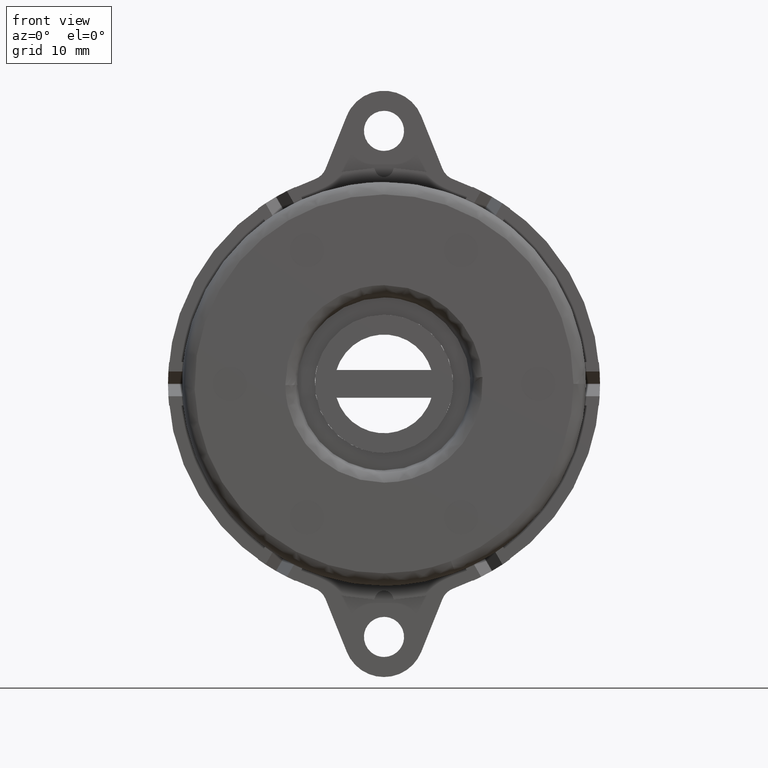
[diagram: clean part render]
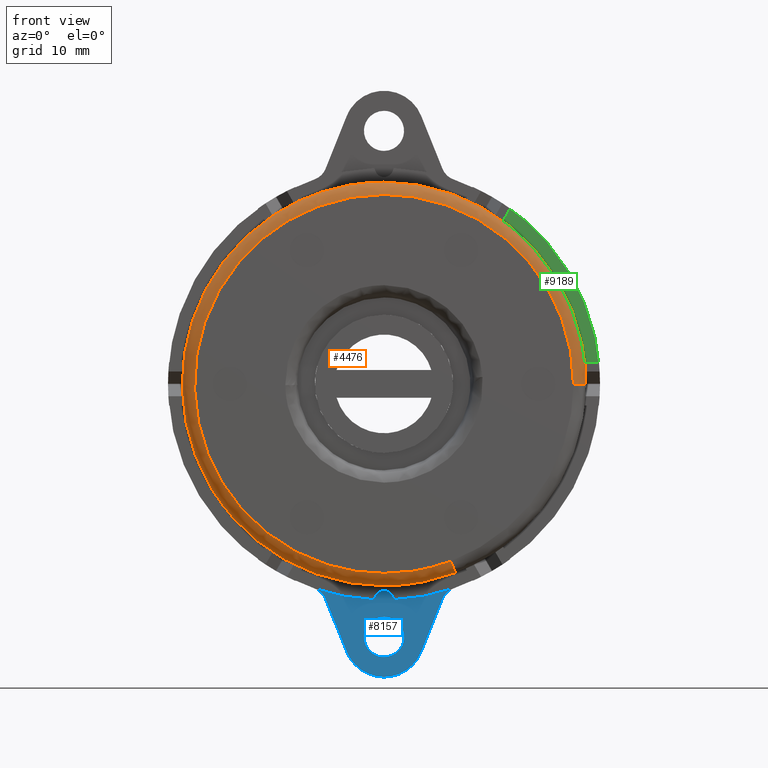
[diagram: same view with three faces highlighted in distinct colors, each labeled with its STEP entity id]
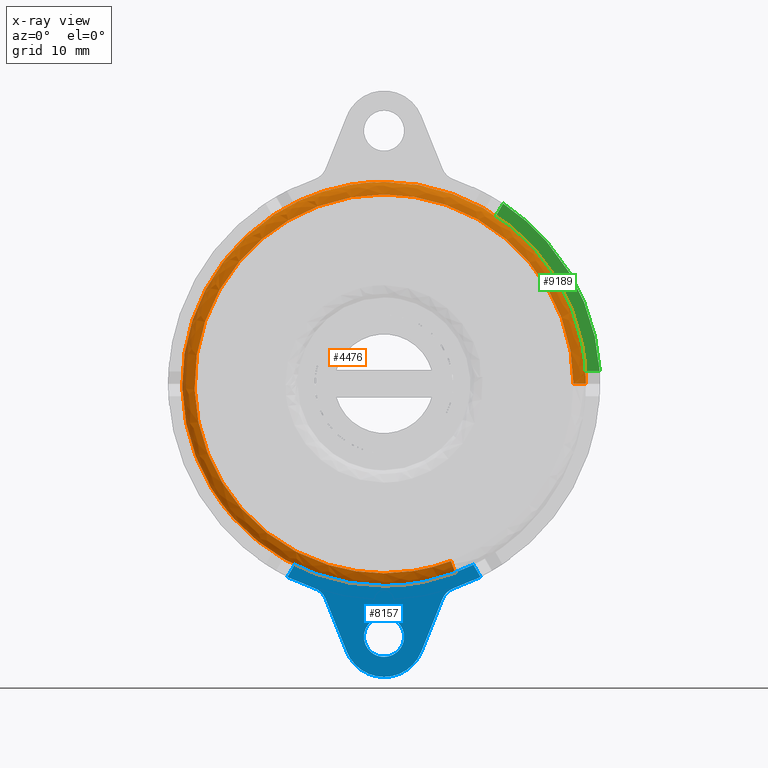
[diagram: x-ray of the same camera — body ghosted, the three highlighted faces saturated]
A machine part, front view with three faces highlighted in distinct colors.
The next image is the same camera in x-ray (body ghosted, the three faces saturated) — at least one of them is partly hidden behind the body in this view.
Their STEP definitions:

[orange] entity #4476 — the highlighted face is a freeform B-spline surface patch.
#2391=CARTESIAN_POINT('',(-27.975708191630559,-9.299999999999999,-16.930733923156868));
#2392=VERTEX_POINT('',#2391);
#2393=CARTESIAN_POINT('',(-9.911116520391543,-9.300000000002612,31.161831931372731));
#2394=VERTEX_POINT('',#2393);
#2395=CARTESIAN_POINT('',(-27.975708191630556,-9.299999999999999,-16.930733923156861));
#2396=CARTESIAN_POINT('',(-32.700000000000003,-9.299999999999999,-9.124491760922808));
#2397=CARTESIAN_POINT('',(-32.700000000000003,-9.299999999999999,-9.985231E-016));
#2398=CARTESIAN_POINT('',(-32.700000000000003,-9.299999999999999,23.913757426850960));
#2399=CARTESIAN_POINT('',(-9.911116520391543,-9.300000000002610,31.161831931372728));
#2407=(BOUNDED_CURVE()B_SPLINE_CURVE(2,(#2395,#2396,#2397,#2398,#2399),.UNSPECIFIED.,.F.,.U.)B_SPLINE_CURVE_WITH_KNOTS((3,2,3),(0.661566878939091,0.750000000000000,0.948444082053366),.UNSPECIFIED.)CURVE()GEOMETRIC_REPRESENTATION_ITEM()RATIONAL_B_SPLINE_CURVE((0.866085814693111,0.896394154091002,1.0,0.767508296211635,0.904109414369711))REPRESENTATION_ITEM(''));
#2408=EDGE_CURVE('',#2392,#2394,#2407,.T.);
#3012=CARTESIAN_POINT('',(0.0,-9.299999999999999,32.700000000000003));
#3013=VERTEX_POINT('',#3012);
#3014=CARTESIAN_POINT('',(-9.911116520391543,-9.300000000002610,31.161831931372728));
#3015=CARTESIAN_POINT('',(-5.074917214480928,-9.299999999999999,32.700000000000010));
#3016=CARTESIAN_POINT('',(0.0,-9.299999999999999,32.700000000000003));
#3024=(BOUNDED_CURVE()B_SPLINE_CURVE(2,(#3014,#3015,#3016),.UNSPECIFIED.,.F.,.U.)B_SPLINE_CURVE_WITH_KNOTS((3,3),(0.948444082053366,1.0),.UNSPECIFIED.)CURVE()GEOMETRIC_REPRESENTATION_ITEM()RATIONAL_B_SPLINE_CURVE((0.904109414369711,0.939598484974912,1.0))REPRESENTATION_ITEM(''));
#3025=EDGE_CURVE('',#2394,#3013,#3024,.T.);
#3027=CARTESIAN_POINT('',(32.700000000000003,-9.300000000022527,0.0));
#3028=VERTEX_POINT('',#3027);
#3029=CARTESIAN_POINT('',(0.0,-9.299999999999999,32.700000000000003));
#3030=CARTESIAN_POINT('',(32.700000000000017,-9.300000000000001,32.700000000000003));
#3031=CARTESIAN_POINT('',(32.700000000000003,-9.300000000022527,0.0));
#3039=(BOUNDED_CURVE()B_SPLINE_CURVE(2,(#3029,#3030,#3031),.UNSPECIFIED.,.F.,.U.)B_SPLINE_CURVE_WITH_KNOTS((3,3),(0.0,0.250000000000000),.UNSPECIFIED.)CURVE()GEOMETRIC_REPRESENTATION_ITEM()RATIONAL_B_SPLINE_CURVE((1.0,0.707106781186547,1.0))REPRESENTATION_ITEM(''));
#3040=EDGE_CURVE('',#3013,#3028,#3039,.T.);
#3042=CARTESIAN_POINT('',(11.552974309786659,-9.300000000025948,-30.591155332831249));
#3043=VERTEX_POINT('',#3042);
#3057=CARTESIAN_POINT('',(0.0,-9.299999999999999,-32.700000000000003));
#3058=VERTEX_POINT('',#3057);
#3059=CARTESIAN_POINT('',(11.552974309786656,-9.300000000025948,-30.591155332831242));
#3060=CARTESIAN_POINT('',(5.968958189235386,-9.299999999999999,-32.700000000000003));
#3061=CARTESIAN_POINT('',(0.0,-9.299999999999999,-32.700000000000003));
#3069=(BOUNDED_CURVE()B_SPLINE_CURVE(2,(#3059,#3060,#3061),.UNSPECIFIED.,.F.,.U.)B_SPLINE_CURVE_WITH_KNOTS((3,3),(0.439999999999986,0.500000000000000),.UNSPECIFIED.)CURVE()GEOMETRIC_REPRESENTATION_ITEM()RATIONAL_B_SPLINE_CURVE((0.893152553776835,0.929705627484755,1.0))REPRESENTATION_ITEM(''));
#3070=EDGE_CURVE('',#3043,#3058,#3069,.T.);
#3072=CARTESIAN_POINT('',(0.0,-9.299999999999999,-32.700000000000003));
#3073=CARTESIAN_POINT('',(-18.432241181185169,-9.299999999999999,-32.700000000000010));
#3074=CARTESIAN_POINT('',(-27.975708191630559,-9.299999999999999,-16.930733923156868));
#3082=(BOUNDED_CURVE()B_SPLINE_CURVE(2,(#3072,#3073,#3074),.UNSPECIFIED.,.F.,.U.)B_SPLINE_CURVE_WITH_KNOTS((3,3),(0.500000000000000,0.661566878939090),.UNSPECIFIED.)CURVE()GEOMETRIC_REPRESENTATION_ITEM()RATIONAL_B_SPLINE_CURVE((1.0,0.810712627095546,0.866085814693111))REPRESENTATION_ITEM(''));
#3083=EDGE_CURVE('',#3058,#2392,#3082,.T.);
#4359=CARTESIAN_POINT('',(10.797366990014213,-11.295184701486932,-28.590380444051565));
#4360=CARTESIAN_POINT('',(5.578566210661520,-11.295184701486933,-30.561298857421864));
#4361=CARTESIAN_POINT('',(3.742556E-015,-11.295184701486932,-30.561298857421860));
#4362=CARTESIAN_POINT('',(-30.561298857421857,-11.295184701486937,-30.561298857421857));
#4363=CARTESIAN_POINT('',(-30.561298857421860,-11.295184701486932,-6.612357E-015));
#4364=CARTESIAN_POINT('',(-30.561298857421857,-11.295184701486937,30.561298857421857));
#4365=CARTESIAN_POINT('',(-7.485112E-015,-11.295184701486932,30.561298857421860));
#4366=CARTESIAN_POINT('',(30.561298857421857,-11.295184701486937,30.561298857421857));
#4367=CARTESIAN_POINT('',(30.561298857421860,-11.295184701486932,8.357867E-015));
#4368=CARTESIAN_POINT('',(11.607905112446989,-11.454671347022614,-30.736606769987500));
#4369=CARTESIAN_POINT('',(5.997338730521062,-11.454671347022614,-32.855478338207391));
#4370=CARTESIAN_POINT('',(4.023503E-015,-11.454671347022614,-32.855478338207384));
#4371=CARTESIAN_POINT('',(-32.855478338207369,-11.454671347022616,-32.855478338207398));
#4372=CARTESIAN_POINT('',(-32.855478338207384,-11.454671347022614,-7.033777E-015));
#4373=CARTESIAN_POINT('',(-32.855478338207398,-11.454671347022616,32.855478338207369));
#4374=CARTESIAN_POINT('',(-8.047006E-015,-11.454671347022614,32.855478338207384));
#4375=CARTESIAN_POINT('',(32.855478338207369,-11.454671347022616,32.855478338207398));
#4376=CARTESIAN_POINT('',(32.855478338207384,-11.454671347022614,9.060234E-015));
#4377=CARTESIAN_POINT('',(11.551254656079776,-9.160551748587878,-30.586601856626160));
#4378=CARTESIAN_POINT('',(5.968069713176283,-9.160551748587880,-32.695132623455926));
#4379=CARTESIAN_POINT('',(4.003867E-015,-9.160551748587878,-32.695132623455919));
#4380=CARTESIAN_POINT('',(-32.695132623455912,-9.160551748587878,-32.695132623455926));
#4381=CARTESIAN_POINT('',(-32.695132623455919,-9.160551748587878,-7.004323E-015));
#4382=CARTESIAN_POINT('',(-32.695132623455926,-9.160551748587878,32.695132623455912));
#4383=CARTESIAN_POINT('',(-8.007733E-015,-9.160551748587878,32.695132623455919));
#4384=CARTESIAN_POINT('',(32.695132623455912,-9.160551748587878,32.695132623455926));
#4385=CARTESIAN_POINT('',(32.695132623455919,-9.160551748587878,9.011144E-015));
#4393=(BOUNDED_SURFACE()B_SPLINE_SURFACE(2,2,((#4359,#4368,#4377),(#4360,#4369,#4378),(#4361,#4370,#4379),(#4362,#4371,#4380),(#4363,#4372,#4381),(#4364,#4373,#4382),(#4365,#4374,#4383),(#4366,#4375,#4384),(#4367,#4376,#4385)),.UNSPECIFIED.,.F.,.F.,.U.)B_SPLINE_SURFACE_WITH_KNOTS((3,2,2,2,3),(3,3),(0.0,13.001056661973580,67.172126086863457,121.343195511753290,175.514264936643200),(0.0,3.644740501120273),.UNSPECIFIED.)GEOMETRIC_REPRESENTATION_ITEM()RATIONAL_B_SPLINE_SURFACE(((0.818097925961966,0.535367204398513,0.813566335131316),(0.851579321342329,0.557277590032444,0.846862271070348),(0.915966620150718,0.599412947020773,0.910892917106947),(0.647686208449095,0.423848959569402,0.644098558621118),(0.915966620150718,0.599412947020773,0.910892917106947),(0.647686208449095,0.423848959569402,0.644098558621118),(0.915966620150718,0.599412947020773,0.910892917106947),(0.647686208449095,0.423848959569402,0.644098558621118),(0.915966620150718,0.599412947020773,0.910892917106947)))REPRESENTATION_ITEM('')SURFACE());
#4394=CARTESIAN_POINT('',(0.0,-11.300000000000001,-30.699999999999999));
#4395=VERTEX_POINT('',#4394);
#4396=CARTESIAN_POINT('',(10.846370380472649,-11.300000000000001,-28.720136668097190));
#4397=VERTEX_POINT('',#4396);
#4398=CARTESIAN_POINT('',(0.0,-11.300000000000001,-30.699999999999999));
#4399=CARTESIAN_POINT('',(5.603884294070642,-11.299999999999994,-30.700000000000003));
#4400=CARTESIAN_POINT('',(10.846370380472653,-11.299999999999997,-28.720136668097194));
#4408=(BOUNDED_CURVE()B_SPLINE_CURVE(2,(#4398,#4399,#4400),.UNSPECIFIED.,.F.,.U.)B_SPLINE_CURVE_WITH_KNOTS((3,3),(0.500000000000000,0.560000000002018),.UNSPECIFIED.)CURVE()GEOMETRIC_REPRESENTATION_ITEM()RATIONAL_B_SPLINE_CURVE((1.0,0.929705627482407,0.893152553774393))REPRESENTATION_ITEM(''));
#4409=EDGE_CURVE('',#4395,#4397,#4408,.T.);
#4410=ORIENTED_EDGE('',*,*,#4409,.F.);
#4411=CARTESIAN_POINT('',(0.0,-11.300000000000001,30.699999999999999));
#4412=VERTEX_POINT('',#4411);
#4413=CARTESIAN_POINT('',(0.0,-11.300000000000001,30.699999999999999));
#4414=CARTESIAN_POINT('',(-30.699999999999999,-11.299999999999999,30.699999999999999));
#4415=CARTESIAN_POINT('',(-30.699999999999999,-11.300000000000001,-9.985231E-016));
#4416=CARTESIAN_POINT('',(-30.699999999999999,-11.299999999999999,-30.699999999999999));
#4417=CARTESIAN_POINT('',(0.0,-11.300000000000001,-30.699999999999999));
#4425=(BOUNDED_CURVE()B_SPLINE_CURVE(2,(#4413,#4414,#4415,#4416,#4417),.UNSPECIFIED.,.F.,.U.)B_SPLINE_CURVE_WITH_KNOTS((3,2,3),(0.0,0.250000000000000,0.500000000000000),.UNSPECIFIED.)CURVE()GEOMETRIC_REPRESENTATION_ITEM()RATIONAL_B_SPLINE_CURVE((1.0,0.707106781186548,1.0,0.707106781186548,1.0))REPRESENTATION_ITEM(''));
#4426=EDGE_CURVE('',#4412,#4395,#4425,.T.);
#4427=ORIENTED_EDGE('',*,*,#4426,.F.);
#4428=CARTESIAN_POINT('',(30.700000000572651,-11.300000000000001,0.0));
#4429=VERTEX_POINT('',#4428);
#4430=CARTESIAN_POINT('',(30.700000000572651,-11.300000000000001,0.0));
#4431=CARTESIAN_POINT('',(30.699999999999999,-11.299999999999999,30.699999999999999));
#4432=CARTESIAN_POINT('',(0.0,-11.300000000000001,30.699999999999999));
#4440=(BOUNDED_CURVE()B_SPLINE_CURVE(2,(#4430,#4431,#4432),.UNSPECIFIED.,.F.,.U.)B_SPLINE_CURVE_WITH_KNOTS((3,3),(0.750000000000000,1.0),.UNSPECIFIED.)CURVE()GEOMETRIC_REPRESENTATION_ITEM()RATIONAL_B_SPLINE_CURVE((1.0,0.707106781186548,1.0))REPRESENTATION_ITEM(''));
#4441=EDGE_CURVE('',#4429,#4412,#4440,.T.);
#4442=ORIENTED_EDGE('',*,*,#4441,.F.);
#4443=CARTESIAN_POINT('',(30.700000000572654,-11.300000000000001,0.0));
#4444=CARTESIAN_POINT('',(32.699999999954940,-11.299999998854696,0.0));
#4445=CARTESIAN_POINT('',(32.700000000000010,-9.300000000022527,0.0));
#4453=(BOUNDED_CURVE()B_SPLINE_CURVE(2,(#4443,#4444,#4445),.UNSPECIFIED.,.F.,.U.)B_SPLINE_CURVE_WITH_KNOTS((3,3),(-1.736413120479497,-0.276558718038426),.UNSPECIFIED.)CURVE()GEOMETRIC_REPRESENTATION_ITEM()RATIONAL_B_SPLINE_CURVE((0.888510408849920,0.626638727346142,0.883897567130489))REPRESENTATION_ITEM(''));
#4454=EDGE_CURVE('',#4429,#3028,#4453,.T.);
#4455=ORIENTED_EDGE('',*,*,#4454,.T.);
#4456=ORIENTED_EDGE('',*,*,#3040,.F.);
#4457=ORIENTED_EDGE('',*,*,#3025,.F.);
#4458=ORIENTED_EDGE('',*,*,#2408,.F.);
#4459=ORIENTED_EDGE('',*,*,#3083,.F.);
#4460=ORIENTED_EDGE('',*,*,#3070,.F.);
#4461=CARTESIAN_POINT('',(10.846370380472653,-11.299999999999999,-28.720136668097187));
#4462=CARTESIAN_POINT('',(11.552974309766936,-11.299999978352588,-30.591155332783213));
#4463=CARTESIAN_POINT('',(11.552974309786658,-9.300000000025948,-30.591155332831239));
#4471=(BOUNDED_CURVE()B_SPLINE_CURVE(2,(#4461,#4462,#4463),.UNSPECIFIED.,.F.,.U.)B_SPLINE_CURVE_WITH_KNOTS((3,3),(-1.736413109870035,-0.276558718041947),.UNSPECIFIED.)CURVE()GEOMETRIC_REPRESENTATION_ITEM()RATIONAL_B_SPLINE_CURVE((0.793575337322020,0.559683981295107,0.789455369358635))REPRESENTATION_ITEM(''));
#4472=EDGE_CURVE('',#4397,#3043,#4471,.T.);
#4473=ORIENTED_EDGE('',*,*,#4472,.F.);
#4474=EDGE_LOOP('',(#4410,#4427,#4442,#4455,#4456,#4457,#4458,#4459,#4460,#4473));
#4475=FACE_OUTER_BOUND('',#4474,.T.);
#4476=ADVANCED_FACE('',(#4475),#4393,.T.);

[blue] entity #8157 — the highlighted face is a freeform B-spline surface patch.
#2209=CARTESIAN_POINT('',(0.0,-1.599999999999935,-37.750000000000000));
#2210=VERTEX_POINT('',#2209);
#2211=CARTESIAN_POINT('',(-3.239981334623022,-1.599999999999935,-40.745007938761972));
#2212=VERTEX_POINT('',#2211);
#2213=CARTESIAN_POINT('',(0.0,-1.599999999999935,-37.750000000000000));
#2214=CARTESIAN_POINT('',(-3.004269097661235,-1.599999999999935,-37.750000000000007));
#2215=CARTESIAN_POINT('',(-3.239981334623022,-1.599999999999936,-40.745007938761972));
#2223=(BOUNDED_CURVE()B_SPLINE_CURVE(2,(#2213,#2214,#2215),.UNSPECIFIED.,.F.,.U.)B_SPLINE_CURVE_WITH_KNOTS((3,3),(0.0,0.236331300619801),.UNSPECIFIED.)CURVE()GEOMETRIC_REPRESENTATION_ITEM()RATIONAL_B_SPLINE_CURVE((1.0,0.723120658620387,0.969723356144756))REPRESENTATION_ITEM(''));
#2224=EDGE_CURVE('',#2210,#2212,#2223,.T.);
#2265=CARTESIAN_POINT('',(3.239981334623022,-1.599999999999935,-41.254992061238028));
#2266=VERTEX_POINT('',#2265);
#2272=CARTESIAN_POINT('',(3.239981334623022,-1.599999999999935,-41.254992061238028));
#2273=CARTESIAN_POINT('',(3.250000000000000,-1.599999999999936,-41.127692847898032));
#2274=CARTESIAN_POINT('',(3.250000000000000,-1.599999999999935,-41.0));
#2275=CARTESIAN_POINT('',(3.250000000000000,-1.599999999999935,-37.750000000000007));
#2276=CARTESIAN_POINT('',(0.0,-1.599999999999935,-37.750000000000000));
#2284=(BOUNDED_CURVE()B_SPLINE_CURVE(2,(#2272,#2273,#2274,#2275,#2276),.UNSPECIFIED.,.F.,.U.)B_SPLINE_CURVE_WITH_KNOTS((3,2,3),(0.736331300619800,0.750000000000000,1.0),.UNSPECIFIED.)CURVE()GEOMETRIC_REPRESENTATION_ITEM()RATIONAL_B_SPLINE_CURVE((0.969723356144756,0.983986122566160,1.0,0.707106781186547,1.0))REPRESENTATION_ITEM(''));
#2285=EDGE_CURVE('',#2266,#2210,#2284,.T.);
#2308=CARTESIAN_POINT('',(0.0,-1.599999999999935,-44.250000000000007));
#2309=VERTEX_POINT('',#2308);
#2310=CARTESIAN_POINT('',(-3.239981334623022,-1.599999999999935,-40.745007938761972));
#2311=CARTESIAN_POINT('',(-3.250000000000000,-1.599999999999936,-40.872307152101968));
#2312=CARTESIAN_POINT('',(-3.250000000000000,-1.599999999999935,-41.0));
#2313=CARTESIAN_POINT('',(-3.250000000000000,-1.599999999999935,-44.250000000000007));
#2314=CARTESIAN_POINT('',(0.0,-1.599999999999935,-44.250000000000007));
#2322=(BOUNDED_CURVE()B_SPLINE_CURVE(2,(#2310,#2311,#2312,#2313,#2314),.UNSPECIFIED.,.F.,.U.)B_SPLINE_CURVE_WITH_KNOTS((3,2,3),(0.236331300619801,0.250000000000000,0.500000000000000),.UNSPECIFIED.)CURVE()GEOMETRIC_REPRESENTATION_ITEM()RATIONAL_B_SPLINE_CURVE((0.969723356144756,0.983986122566160,1.0,0.707106781186547,1.0))REPRESENTATION_ITEM(''));
#2323=EDGE_CURVE('',#2212,#2309,#2322,.T.);
#2325=CARTESIAN_POINT('',(0.0,-1.599999999999935,-44.250000000000007));
#2326=CARTESIAN_POINT('',(3.004269097661238,-1.599999999999936,-44.250000000000000));
#2327=CARTESIAN_POINT('',(3.239981334623022,-1.599999999999936,-41.254992061238035));
#2335=(BOUNDED_CURVE()B_SPLINE_CURVE(2,(#2325,#2326,#2327),.UNSPECIFIED.,.F.,.U.)B_SPLINE_CURVE_WITH_KNOTS((3,3),(0.500000000000000,0.736331300619801),.UNSPECIFIED.)CURVE()GEOMETRIC_REPRESENTATION_ITEM()RATIONAL_B_SPLINE_CURVE((1.0,0.723120658620387,0.969723356144756))REPRESENTATION_ITEM(''));
#2336=EDGE_CURVE('',#2309,#2266,#2335,.T.);
#3323=CARTESIAN_POINT('',(-14.497596722151600,-1.599999999999935,-29.310574110410400));
#3324=VERTEX_POINT('',#3323);
#3330=CARTESIAN_POINT('',(14.497596722151540,-1.600000000000045,-29.310574110410450));
#3331=VERTEX_POINT('',#3330);
#3332=CARTESIAN_POINT('',(-14.497596722151600,-1.600000000000045,-29.310574110410400));
#3333=CARTESIAN_POINT('',(-4.683753E-014,-1.600000000000045,-36.481375675961772));
#3334=CARTESIAN_POINT('',(14.497596722151529,-1.600000000000045,-29.310574110410428));
#3342=(BOUNDED_CURVE()B_SPLINE_CURVE(2,(#3332,#3333,#3334),.UNSPECIFIED.,.F.,.U.)CURVE()GEOMETRIC_REPRESENTATION_ITEM()QUASI_UNIFORM_CURVE()RATIONAL_B_SPLINE_CURVE((1.0,0.896347804711395,1.0))REPRESENTATION_ITEM(''));
#3343=EDGE_CURVE('',#3324,#3331,#3342,.T.);
#8027=CARTESIAN_POINT('',(-17.213235327327052,-1.599999999999970,-28.402011639482780));
#8028=CARTESIAN_POINT('',(17.213235887008310,-1.599999999999970,-28.402011639482780));
#8029=CARTESIAN_POINT('',(-17.213235327327052,-1.599999999999970,-48.408562308301491));
#8030=CARTESIAN_POINT('',(17.213235887008310,-1.599999999999970,-48.408562308301491));
#8031=B_SPLINE_SURFACE_WITH_KNOTS('',1,1,((#8027,#8029),(#8028,#8030)),.UNSPECIFIED.,.F.,.F.,.U.,(2,2),(2,2),(0.0,34.426471214335372),(0.0,20.006550668818718),.UNSPECIFIED.);
#8032=CARTESIAN_POINT('',(11.290251355783001,-1.600000000000045,-33.128993711298300));
#8033=VERTEX_POINT('',#8032);
#8034=CARTESIAN_POINT('',(9.472363982807911,-1.599999999999935,-34.854947957250602));
#8035=VERTEX_POINT('',#8034);
#8036=CARTESIAN_POINT('',(11.290251355783001,-1.600000000000045,-33.128993711298300));
#8037=CARTESIAN_POINT('',(9.984478149512318,-1.599999999999990,-33.574001503755298));
#8038=CARTESIAN_POINT('',(9.472363982807911,-1.599999999999935,-34.854947957250602));
#8046=(BOUNDED_CURVE()B_SPLINE_CURVE(2,(#8036,#8037,#8038),.UNSPECIFIED.,.F.,.U.)CURVE()GEOMETRIC_REPRESENTATION_ITEM()QUASI_UNIFORM_CURVE()RATIONAL_B_SPLINE_CURVE((1.0,0.908545628248373,1.0))REPRESENTATION_ITEM(''));
#8047=EDGE_CURVE('',#8033,#8035,#8046,.T.);
#8048=ORIENTED_EDGE('',*,*,#8047,.F.);
#8049=CARTESIAN_POINT('',(15.649818250907700,-1.600000000000045,-31.306280339790550));
#8050=VERTEX_POINT('',#8049);
#8051=CARTESIAN_POINT('',(11.290251355782980,-1.600000000000045,-33.128993711298278));
#8052=CARTESIAN_POINT('',(13.531695446453842,-1.600000000000045,-32.365116987358483));
#8053=CARTESIAN_POINT('',(15.649818250907700,-1.600000000000045,-31.306280339790550));
#8061=(BOUNDED_CURVE()B_SPLINE_CURVE(2,(#8051,#8052,#8053),.UNSPECIFIED.,.F.,.U.)CURVE()GEOMETRIC_REPRESENTATION_ITEM()QUASI_UNIFORM_CURVE()RATIONAL_B_SPLINE_CURVE((1.0,0.997719020244479,1.0))REPRESENTATION_ITEM(''));
#8062=EDGE_CURVE('',#8033,#8050,#8061,.T.);
#8063=ORIENTED_EDGE('',*,*,#8062,.T.);
#8064=CARTESIAN_POINT('',(15.649818250907700,-1.600000000000045,-31.306280339790550));
#8065=CARTESIAN_POINT('',(14.497596722151540,-1.600000000000045,-29.310574110410450));
#8066=QUASI_UNIFORM_CURVE('',1,(#8064,#8065),.UNSPECIFIED.,.F.,.U.);
#8067=EDGE_CURVE('',#8050,#3331,#8066,.T.);
#8068=ORIENTED_EDGE('',*,*,#8067,.T.);
#8069=ORIENTED_EDGE('',*,*,#3343,.F.);
#8070=CARTESIAN_POINT('',(-15.649818250907551,-1.600000000000045,-31.306280339790600));
#8071=VERTEX_POINT('',#8070);
#8072=CARTESIAN_POINT('',(-14.497596722151600,-1.599999999999935,-29.310574110410400));
#8073=CARTESIAN_POINT('',(-15.649818250907551,-1.600000000000045,-31.306280339790600));
#8074=QUASI_UNIFORM_CURVE('',1,(#8072,#8073),.UNSPECIFIED.,.F.,.U.);
#8075=EDGE_CURVE('',#3324,#8071,#8074,.T.);
#8076=ORIENTED_EDGE('',*,*,#8075,.T.);
#8077=CARTESIAN_POINT('',(-11.290239852876120,-1.600000000000045,-33.128997631445863));
#8078=VERTEX_POINT('',#8077);
#8079=CARTESIAN_POINT('',(-15.649818250907551,-1.600000000000045,-31.306280339790629));
#8080=CARTESIAN_POINT('',(-13.531689986558922,-1.600000000000045,-32.365119716726582));
#8081=CARTESIAN_POINT('',(-11.290239852876120,-1.600000000000045,-33.128997631445863));
#8089=(BOUNDED_CURVE()B_SPLINE_CURVE(2,(#8079,#8080,#8081),.UNSPECIFIED.,.F.,.U.)CURVE()GEOMETRIC_REPRESENTATION_ITEM()QUASI_UNIFORM_CURVE()RATIONAL_B_SPLINE_CURVE((1.0,0.997719008525285,1.0))REPRESENTATION_ITEM(''));
#8090=EDGE_CURVE('',#8071,#8078,#8089,.T.);
#8091=ORIENTED_EDGE('',*,*,#8090,.T.);
#8092=CARTESIAN_POINT('',(-9.474059972795500,-1.599999999999935,-34.850640067741999));
#8093=VERTEX_POINT('',#8092);
#8094=CARTESIAN_POINT('',(-9.474059972795500,-1.599999999999935,-34.850640067741999));
#8095=CARTESIAN_POINT('',(-9.987111113117180,-1.599999999999990,-33.573087308824221));
#8096=CARTESIAN_POINT('',(-11.290239852876120,-1.600000000000045,-33.128997631445863));
#8104=(BOUNDED_CURVE()B_SPLINE_CURVE(2,(#8094,#8095,#8096),.UNSPECIFIED.,.F.,.U.)CURVE()GEOMETRIC_REPRESENTATION_ITEM()QUASI_UNIFORM_CURVE()RATIONAL_B_SPLINE_CURVE((1.0,0.908866272453192,1.0))REPRESENTATION_ITEM(''));
#8105=EDGE_CURVE('',#8093,#8078,#8104,.T.);
#8106=ORIENTED_EDGE('',*,*,#8105,.F.);
#8107=CARTESIAN_POINT('',(-6.037214864569360,-1.599999999999935,-43.408741721111362));
#8108=VERTEX_POINT('',#8107);
#8109=CARTESIAN_POINT('',(-6.037214864569360,-1.599999999999935,-43.408741721111362));
#8110=CARTESIAN_POINT('',(-9.474059972795500,-1.599999999999935,-34.850640067741999));
#8111=QUASI_UNIFORM_CURVE('',1,(#8109,#8110),.UNSPECIFIED.,.F.,.U.);
#8112=EDGE_CURVE('',#8108,#8093,#8111,.T.);
#8113=ORIENTED_EDGE('',*,*,#8112,.F.);
#8114=CARTESIAN_POINT('',(-3.164118E-015,-1.599999999999935,-47.500000000000000));
#8115=VERTEX_POINT('',#8114);
#8116=CARTESIAN_POINT('',(-6.037214864569380,-1.599999999999935,-43.408741721111362));
#8117=CARTESIAN_POINT('',(-4.404875328993776,-1.599999999999935,-47.500000000000000));
#8118=CARTESIAN_POINT('',(0.0,-1.599999999999935,-47.500000000000000));
#8126=(BOUNDED_CURVE()B_SPLINE_CURVE(2,(#8116,#8117,#8118),.UNSPECIFIED.,.F.,.U.)CURVE()GEOMETRIC_REPRESENTATION_ITEM()QUASI_UNIFORM_CURVE()RATIONAL_B_SPLINE_CURVE((1.0,0.827821130861537,1.0))REPRESENTATION_ITEM(''));
#8127=EDGE_CURVE('',#8108,#8115,#8126,.T.);
#8128=ORIENTED_EDGE('',*,*,#8127,.T.);
#8129=CARTESIAN_POINT('',(6.031800000000001,-1.599999999999935,-43.422300000000000));
#8130=VERTEX_POINT('',#8129);
#8131=CARTESIAN_POINT('',(-2.766128E-015,-1.599999999999935,-47.499999999999922));
#8132=CARTESIAN_POINT('',(4.394234208330353,-1.599999999999935,-47.500004324204085));
#8133=CARTESIAN_POINT('',(6.031799999999979,-1.599999999999935,-43.422299999999993));
#8141=(BOUNDED_CURVE()B_SPLINE_CURVE(2,(#8131,#8132,#8133),.UNSPECIFIED.,.F.,.U.)CURVE()GEOMETRIC_REPRESENTATION_ITEM()QUASI_UNIFORM_CURVE()RATIONAL_B_SPLINE_CURVE((1.0,0.828450804167562,1.0))REPRESENTATION_ITEM(''));
#8142=EDGE_CURVE('',#8115,#8130,#8141,.T.);
#8143=ORIENTED_EDGE('',*,*,#8142,.T.);
#8144=CARTESIAN_POINT('',(9.472363982807911,-1.599999999999935,-34.854947957250602));
#8145=CARTESIAN_POINT('',(6.031800000000001,-1.599999999999935,-43.422300000000000));
#8146=QUASI_UNIFORM_CURVE('',1,(#8144,#8145),.UNSPECIFIED.,.F.,.U.);
#8147=EDGE_CURVE('',#8035,#8130,#8146,.T.);
#8148=ORIENTED_EDGE('',*,*,#8147,.F.);
#8149=EDGE_LOOP('',(#8048,#8063,#8068,#8069,#8076,#8091,#8106,#8113,#8128,#8143,#8148));
#8150=FACE_OUTER_BOUND('',#8149,.T.);
#8151=ORIENTED_EDGE('',*,*,#2336,.F.);
#8152=ORIENTED_EDGE('',*,*,#2323,.F.);
#8153=ORIENTED_EDGE('',*,*,#2224,.F.);
#8154=ORIENTED_EDGE('',*,*,#2285,.F.);
#8155=EDGE_LOOP('',(#8151,#8152,#8153,#8154));
#8156=FACE_BOUND('',#8155,.T.);
#8157=ADVANCED_FACE('',(#8150,#8156),#8031,.F.);

[green] entity #9189 — the highlighted face is a freeform B-spline surface patch.
#4052=CARTESIAN_POINT('',(32.632500140197699,-2.599999999999935,2.099999999999885));
#4053=VERTEX_POINT('',#4052);
#4054=CARTESIAN_POINT('',(18.134903418046051,-2.599999999999935,27.210574110410501));
#4055=VERTEX_POINT('',#4054);
#4056=CARTESIAN_POINT('',(32.632500140197699,-2.599999999999935,2.099999999999885));
#4057=CARTESIAN_POINT('',(31.593797910475427,-2.599999999999935,18.240687728335615));
#4058=CARTESIAN_POINT('',(18.134903418046051,-2.599999999999935,27.210574110410501));
#4066=(BOUNDED_CURVE()B_SPLINE_CURVE(2,(#4056,#4057,#4058),.UNSPECIFIED.,.F.,.U.)CURVE()GEOMETRIC_REPRESENTATION_ITEM()QUASI_UNIFORM_CURVE()RATIONAL_B_SPLINE_CURVE((1.0,0.896347804711394,1.0))REPRESENTATION_ITEM(''));
#4067=EDGE_CURVE('',#4053,#4055,#4066,.T.);
#5974=CARTESIAN_POINT('',(19.287124946802098,-2.599999999999935,29.206280339790698));
#5975=VERTEX_POINT('',#5974);
#5976=CARTESIAN_POINT('',(18.134903418046051,-2.599999999999935,27.210574110410501));
#5977=CARTESIAN_POINT('',(19.287124946802098,-2.599999999999935,29.206280339790698));
#5978=QUASI_UNIFORM_CURVE('',1,(#5976,#5977),.UNSPECIFIED.,.F.,.U.);
#5979=EDGE_CURVE('',#4055,#5975,#5978,.T.);
#7623=CARTESIAN_POINT('',(34.936943197709802,-2.599999999999935,2.099999999999885));
#7624=VERTEX_POINT('',#7623);
#7630=CARTESIAN_POINT('',(34.936943197709802,-2.599999999999935,2.099999999999885));
#7631=CARTESIAN_POINT('',(32.632500140197699,-2.599999999999935,2.099999999999885));
#7632=QUASI_UNIFORM_CURVE('',1,(#7630,#7631),.UNSPECIFIED.,.F.,.U.);
#7633=EDGE_CURVE('',#7624,#4053,#7632,.T.);
#9166=CARTESIAN_POINT('',(17.295641090440871,-2.600000000000000,0.746041191952870));
#9167=CARTESIAN_POINT('',(17.295641090440871,-2.600000000000000,30.560237693743520));
#9168=CARTESIAN_POINT('',(35.776205525314957,-2.600000000000000,0.746041191952870));
#9169=CARTESIAN_POINT('',(35.776205525314957,-2.600000000000000,30.560237693743520));
#9170=B_SPLINE_SURFACE_WITH_KNOTS('',1,1,((#9166,#9168),(#9167,#9169)),.UNSPECIFIED.,.F.,.F.,.U.,(2,2),(2,2),(0.0,29.814196501790651),(0.0,18.480564434874090),.UNSPECIFIED.);
#9171=ORIENTED_EDGE('',*,*,#5979,.F.);
#9172=ORIENTED_EDGE('',*,*,#4067,.F.);
#9173=ORIENTED_EDGE('',*,*,#7633,.F.);
#9174=CARTESIAN_POINT('',(34.936943197709802,-2.600000000000000,2.099999999999887));
#9175=CARTESIAN_POINT('',(33.887166029352528,-2.600000000000000,19.564764429120231));
#9176=CARTESIAN_POINT('',(19.287124946802098,-2.599999999999935,29.206280339790698));
#9184=(BOUNDED_CURVE()B_SPLINE_CURVE(2,(#9174,#9175,#9176),.UNSPECIFIED.,.F.,.U.)CURVE()GEOMETRIC_REPRESENTATION_ITEM()QUASI_UNIFORM_CURVE()RATIONAL_B_SPLINE_CURVE((1.0,0.894465152565445,1.0))REPRESENTATION_ITEM(''));
#9185=EDGE_CURVE('',#7624,#5975,#9184,.T.);
#9186=ORIENTED_EDGE('',*,*,#9185,.T.);
#9187=EDGE_LOOP('',(#9171,#9172,#9173,#9186));
#9188=FACE_OUTER_BOUND('',#9187,.T.);
#9189=ADVANCED_FACE('',(#9188),#9170,.F.);